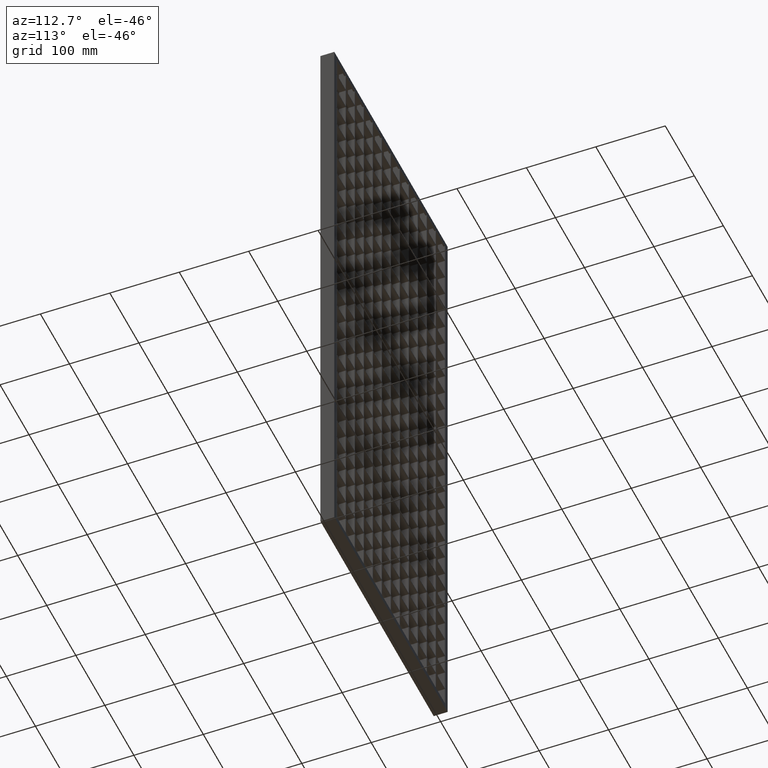
[diagram: clean part render]
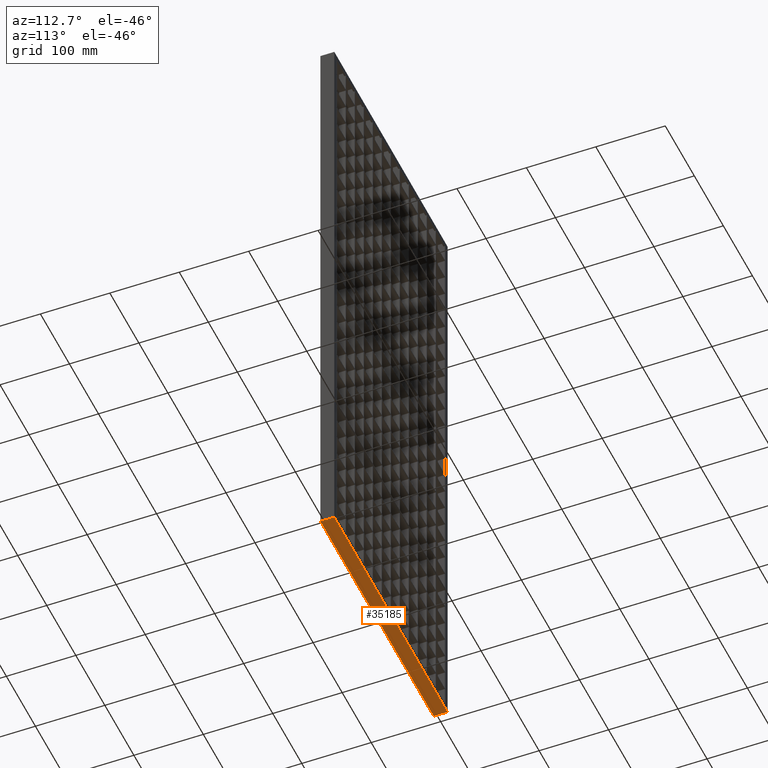
[diagram: same view with one face highlighted and labeled with its STEP entity id]
A machine part, auxiliary view. The second image highlights one B-rep face of the part: STEP entity #35185.
In plain terms, the highlighted planar face has unit normal (-0, 0, 1).
Its self-contained STEP definition (entity closure, byte-faithful):
#706 = CARTESIAN_POINT ( 'NONE',  ( 3.061616997868383000E-015, -10.00000000000000000, -890.0000000000000000 ) ) ;
#1279 = CARTESIAN_POINT ( 'NONE',  ( -3.061616997868386200E-015, 10.00000000000001400, -890.0000000000000000 ) ) ;
#1998 = VERTEX_POINT ( 'NONE', #50752 ) ;
#3851 = DIRECTION ( 'NONE',  ( 3.061616997868382200E-016, 1.000000000000000000, -3.061616997868382600E-016 ) ) ;
#5716 = CARTESIAN_POINT ( 'NONE',  ( 3.061616997868383000E-015, -10.00000000000000000, -890.0000000000000000 ) ) ;
#6417 = EDGE_CURVE ( 'NONE', #17467, #48033, #46924, .T. ) ;
#6935 = VECTOR ( 'NONE', #48270, 1000.000000000000000 ) ;
#7091 = DIRECTION ( 'NONE',  ( -0.0000000000000000000, 3.061616997868382600E-016, 1.000000000000000000 ) ) ;
#7750 = LINE ( 'NONE', #706, #11723 ) ;
#8895 = DIRECTION ( 'NONE',  ( 1.000000000000000000, 0.0000000000000000000, 0.0000000000000000000 ) ) ;
#11723 = VECTOR ( 'NONE', #8895, 1000.000000000000000 ) ;
#14572 = LINE ( 'NONE', #20975, #26661 ) ;
#17467 = VERTEX_POINT ( 'NONE', #42212 ) ;
#19872 = CARTESIAN_POINT ( 'NONE',  ( -3.061616997868386200E-015, 10.00000000000001400, -890.0000000000000000 ) ) ;
#20002 = VERTEX_POINT ( 'NONE', #54446 ) ;
#20975 = CARTESIAN_POINT ( 'NONE',  ( -3.061616997868381900E-015, 10.00000000000000000, -890.0000000000000000 ) ) ;
#24214 = DIRECTION ( 'NONE',  ( 0.0000000000000000000, -1.000000000000000000, 3.061616997868382600E-016 ) ) ;
#26039 = DIRECTION ( 'NONE',  ( 1.000000000000000000, 0.0000000000000000000, 0.0000000000000000000 ) ) ;
#26661 = VECTOR ( 'NONE', #26039, 1000.000000000000000 ) ;
#28320 = EDGE_CURVE ( 'NONE', #20002, #1998, #48721, .T. ) ;
#34301 = EDGE_CURVE ( 'NONE', #17467, #1998, #14572, .T. ) ;
#35185 = ADVANCED_FACE ( 'NONE', ( #49137 ), #49812, .F. ) ;
#35436 = EDGE_CURVE ( 'NONE', #48033, #20002, #7750, .T. ) ;
#38330 = CARTESIAN_POINT ( 'NONE',  ( 390.0000000000000000, 9.999999999999895200, -890.0000000000000000 ) ) ;
#40256 = ORIENTED_EDGE ( 'NONE', *, *, #34301, .T. ) ;
#41436 = VECTOR ( 'NONE', #3851, 1000.000000000000000 ) ;
#42212 = CARTESIAN_POINT ( 'NONE',  ( -3.061616997868381900E-015, 10.00000000000000000, -890.0000000000000000 ) ) ;
#46924 = LINE ( 'NONE', #1279, #6935 ) ;
#47648 = EDGE_LOOP ( 'NONE', ( #52980, #50373, #51497, #40256 ) ) ;
#48033 = VERTEX_POINT ( 'NONE', #5716 ) ;
#48270 = DIRECTION ( 'NONE',  ( 3.061616997868382600E-016, -1.000000000000000000, 3.061616997868382600E-016 ) ) ;
#48721 = LINE ( 'NONE', #38330, #41436 ) ;
#49137 = FACE_OUTER_BOUND ( 'NONE', #47648, .T. ) ;
#49812 = PLANE ( 'NONE',  #53793 ) ;
#50373 = ORIENTED_EDGE ( 'NONE', *, *, #35436, .F. ) ;
#50752 = CARTESIAN_POINT ( 'NONE',  ( 390.0000000000000000, 10.00000000000000200, -890.0000000000000000 ) ) ;
#51497 = ORIENTED_EDGE ( 'NONE', *, *, #6417, .F. ) ;
#52980 = ORIENTED_EDGE ( 'NONE', *, *, #28320, .F. ) ;
#53793 = AXIS2_PLACEMENT_3D ( 'NONE', #19872, #7091, #24214 ) ;
#54446 = CARTESIAN_POINT ( 'NONE',  ( 390.0000000000000000, -10.00000000000000000, -890.0000000000000000 ) ) ;